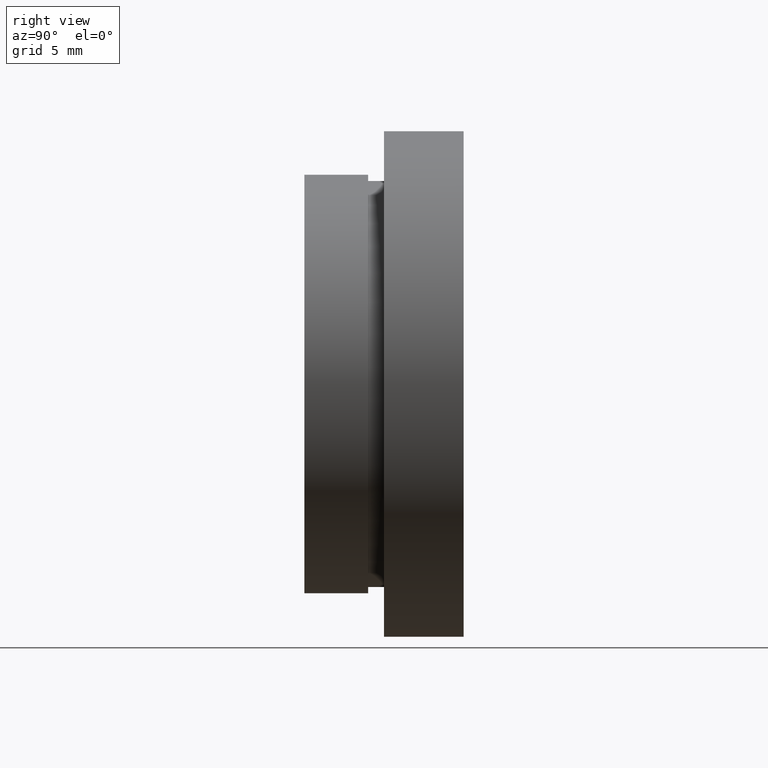
[diagram: clean part render]
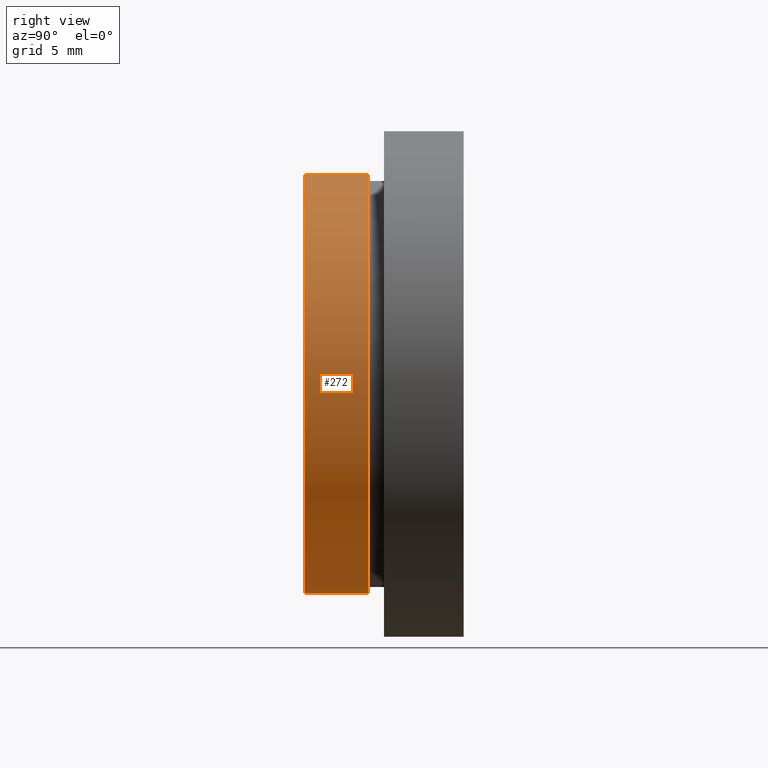
[diagram: same view with one face highlighted and labeled with its STEP entity id]
A machine part, right view. The second image highlights one B-rep face of the part: STEP entity #272.
In plain terms, the highlighted cylindrical surface (partial cylindrical patch) has radius 13.145 mm, axis along (-0, 1, -0).
Its self-contained STEP definition (entity closure, byte-faithful):
#3 = DIRECTION ( 'NONE',  ( 0.0000000000000000000, 0.0000000000000000000, 1.000000000000000000 ) ) ;
#22 = CARTESIAN_POINT ( 'NONE',  ( 1.609798217479195900E-015, 13.74468085106383300, -13.14500000000000000 ) ) ;
#62 = VECTOR ( 'NONE', #69, 1000.000000000000000 ) ;
#69 = DIRECTION ( 'NONE',  ( -0.0000000000000000000, 1.000000000000000000, -0.0000000000000000000 ) ) ;
#139 = CARTESIAN_POINT ( 'NONE',  ( 0.0000000000000000000, 4.000000000000000000, 0.0000000000000000000 ) ) ;
#149 = VERTEX_POINT ( 'NONE', #360 ) ;
#154 = CARTESIAN_POINT ( 'NONE',  ( 1.609798217479195900E-015, 4.000000000000000000, -13.14500000000000000 ) ) ;
#168 = AXIS2_PLACEMENT_3D ( 'NONE', #249, #496, #206 ) ;
#169 = VERTEX_POINT ( 'NONE', #598 ) ;
#173 = VERTEX_POINT ( 'NONE', #313 ) ;
#206 = DIRECTION ( 'NONE',  ( 0.0000000000000000000, 0.0000000000000000000, 1.000000000000000000 ) ) ;
#213 = ORIENTED_EDGE ( 'NONE', *, *, #555, .F. ) ;
#224 = LINE ( 'NONE', #589, #62 ) ;
#232 = VERTEX_POINT ( 'NONE', #154 ) ;
#239 = CARTESIAN_POINT ( 'NONE',  ( 0.0000000000000000000, 13.74468085106383300, 0.0000000000000000000 ) ) ;
#249 = CARTESIAN_POINT ( 'NONE',  ( 0.0000000000000000000, 0.0000000000000000000, 0.0000000000000000000 ) ) ;
#272 = ADVANCED_FACE ( 'NONE', ( #592 ), #356, .T. ) ;
#274 = CIRCLE ( 'NONE', #365, 13.14500000000000000 ) ;
#293 = VECTOR ( 'NONE', #521, 1000.000000000000000 ) ;
#310 = ORIENTED_EDGE ( 'NONE', *, *, #565, .F. ) ;
#313 = CARTESIAN_POINT ( 'NONE',  ( 1.609798217479195900E-015, 0.0000000000000000000, -13.14500000000000000 ) ) ;
#331 = DIRECTION ( 'NONE',  ( -0.0000000000000000000, 1.000000000000000000, -0.0000000000000000000 ) ) ;
#354 = LINE ( 'NONE', #22, #293 ) ;
#356 = CYLINDRICAL_SURFACE ( 'NONE', #611, 13.14500000000000000 ) ;
#360 = CARTESIAN_POINT ( 'NONE',  ( 0.0000000000000000000, 4.000000000000000000, 13.14500000000000000 ) ) ;
#365 = AXIS2_PLACEMENT_3D ( 'NONE', #139, #331, #3 ) ;
#389 = DIRECTION ( 'NONE',  ( -0.0000000000000000000, 1.000000000000000000, -0.0000000000000000000 ) ) ;
#416 = EDGE_CURVE ( 'NONE', #169, #173, #558, .T. ) ;
#470 = ORIENTED_EDGE ( 'NONE', *, *, #577, .T. ) ;
#496 = DIRECTION ( 'NONE',  ( -0.0000000000000000000, 1.000000000000000000, -0.0000000000000000000 ) ) ;
#521 = DIRECTION ( 'NONE',  ( -0.0000000000000000000, 1.000000000000000000, -0.0000000000000000000 ) ) ;
#555 = EDGE_CURVE ( 'NONE', #169, #149, #224, .T. ) ;
#558 = CIRCLE ( 'NONE', #168, 13.14500000000000000 ) ;
#565 = EDGE_CURVE ( 'NONE', #149, #232, #274, .T. ) ;
#568 = DIRECTION ( 'NONE',  ( 0.0000000000000000000, 0.0000000000000000000, 1.000000000000000000 ) ) ;
#575 = ORIENTED_EDGE ( 'NONE', *, *, #416, .T. ) ;
#577 = EDGE_CURVE ( 'NONE', #173, #232, #354, .T. ) ;
#589 = CARTESIAN_POINT ( 'NONE',  ( 0.0000000000000000000, 13.74468085106383300, 13.14500000000000000 ) ) ;
#592 = FACE_OUTER_BOUND ( 'NONE', #604, .T. ) ;
#598 = CARTESIAN_POINT ( 'NONE',  ( 0.0000000000000000000, 0.0000000000000000000, 13.14500000000000000 ) ) ;
#604 = EDGE_LOOP ( 'NONE', ( #575, #470, #310, #213 ) ) ;
#611 = AXIS2_PLACEMENT_3D ( 'NONE', #239, #389, #568 ) ;